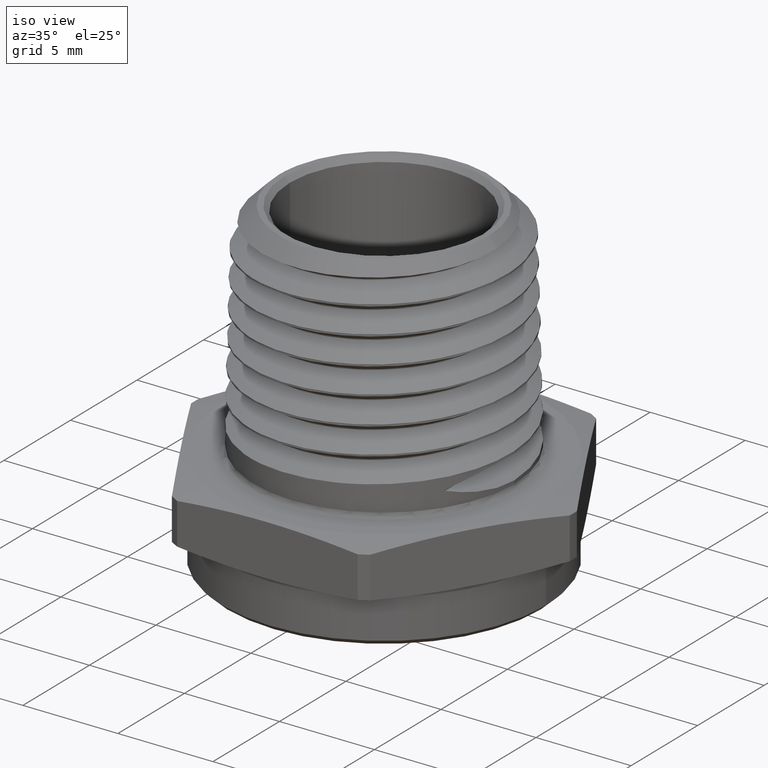
[diagram: clean part render]
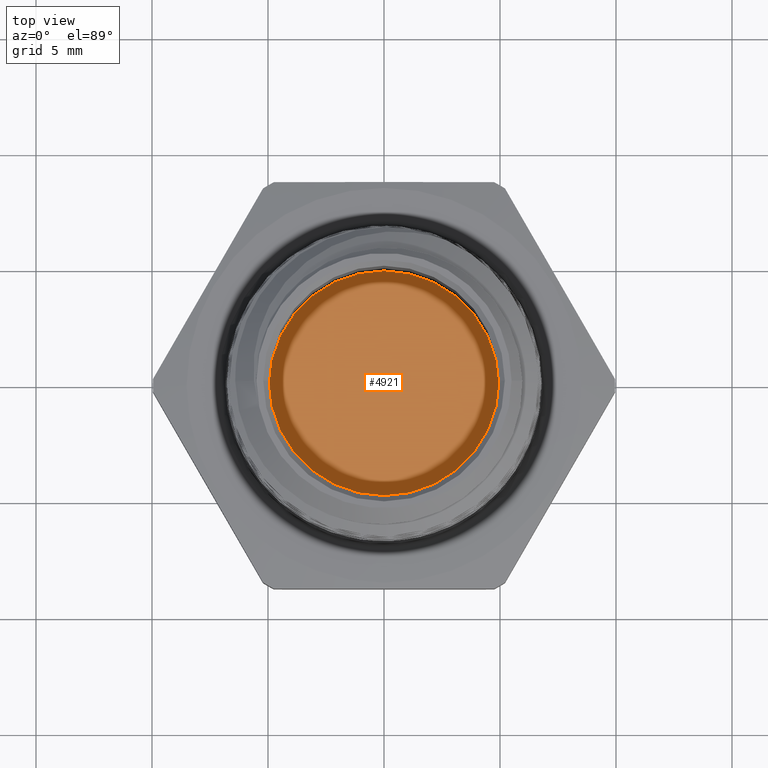
[diagram: tour spotlight — one face highlighted and labeled with its STEP entity id]
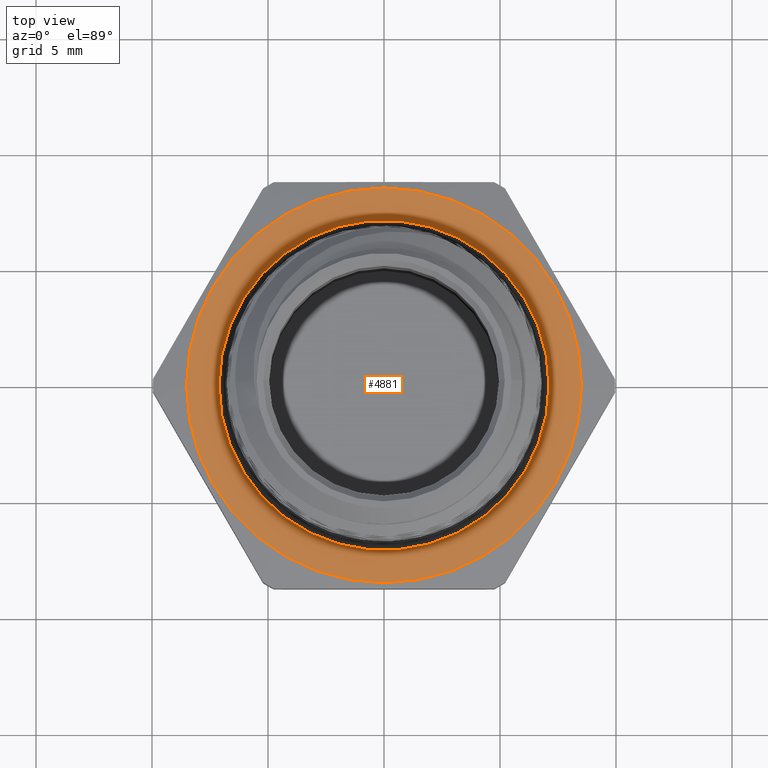
[diagram: tour spotlight — one face highlighted and labeled with its STEP entity id]
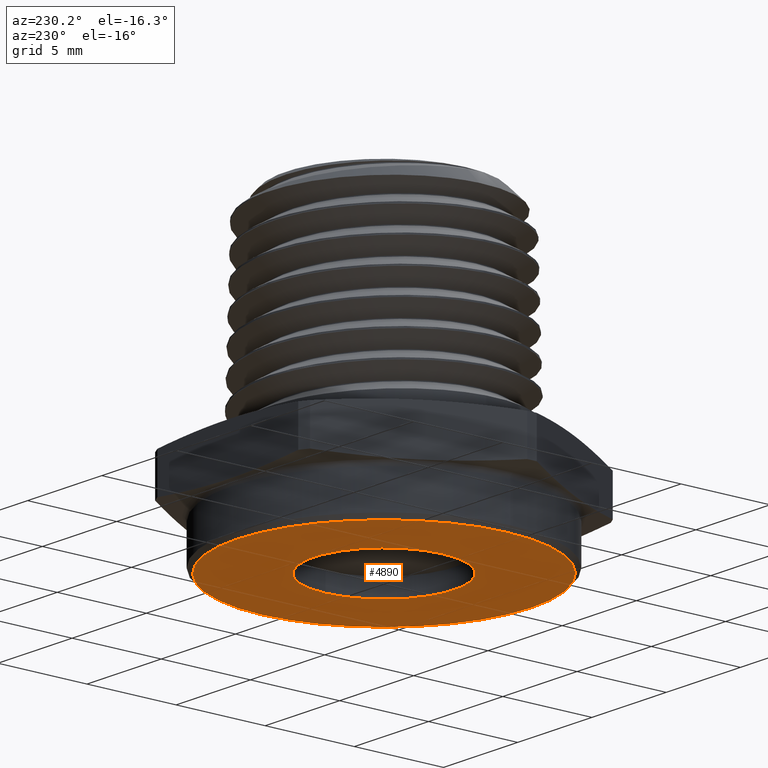
[diagram: tour spotlight — one face highlighted and labeled with its STEP entity id]
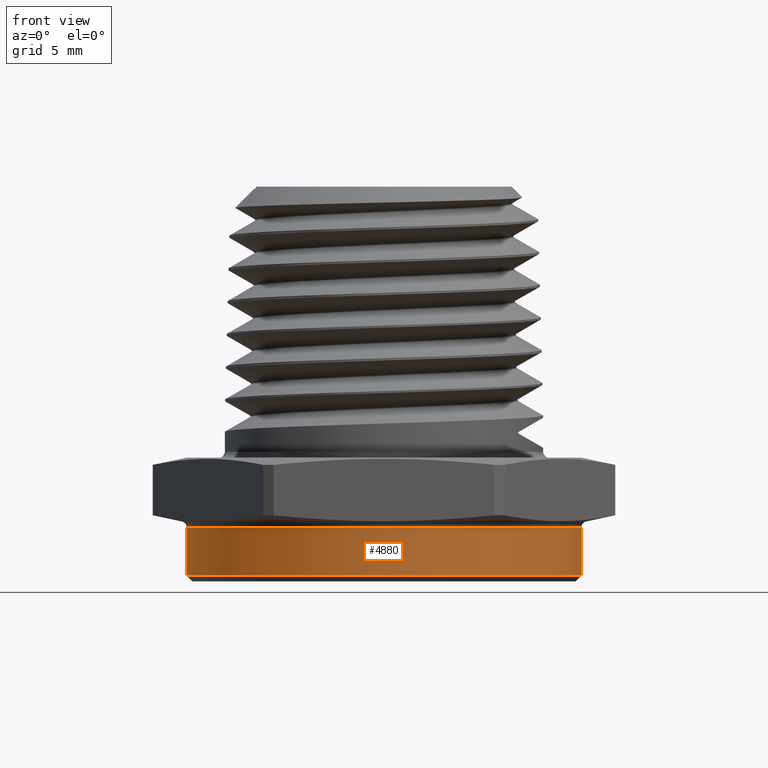
[diagram: tour spotlight — one face highlighted and labeled with its STEP entity id]
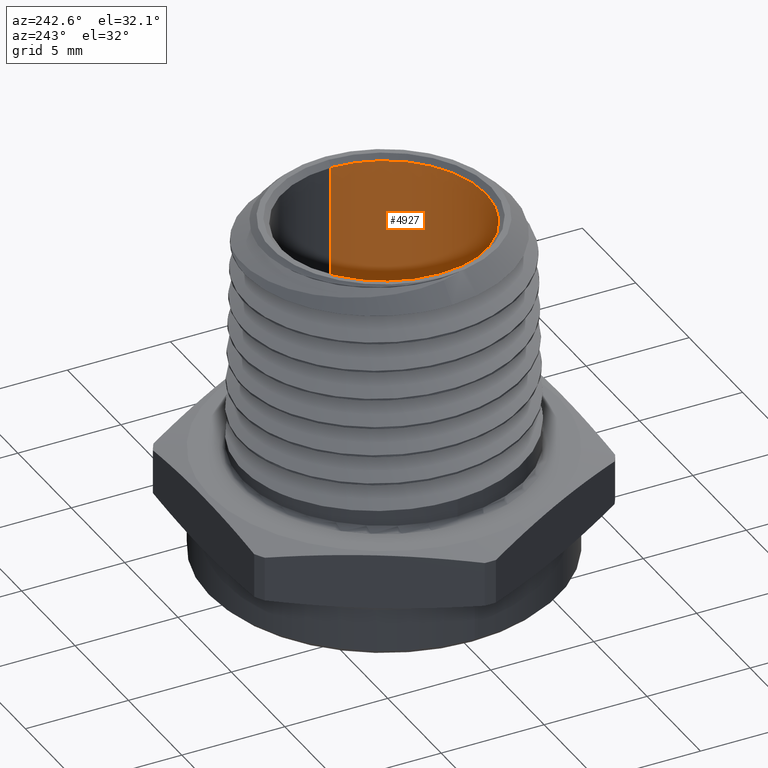
[diagram: tour spotlight — one face highlighted and labeled with its STEP entity id]
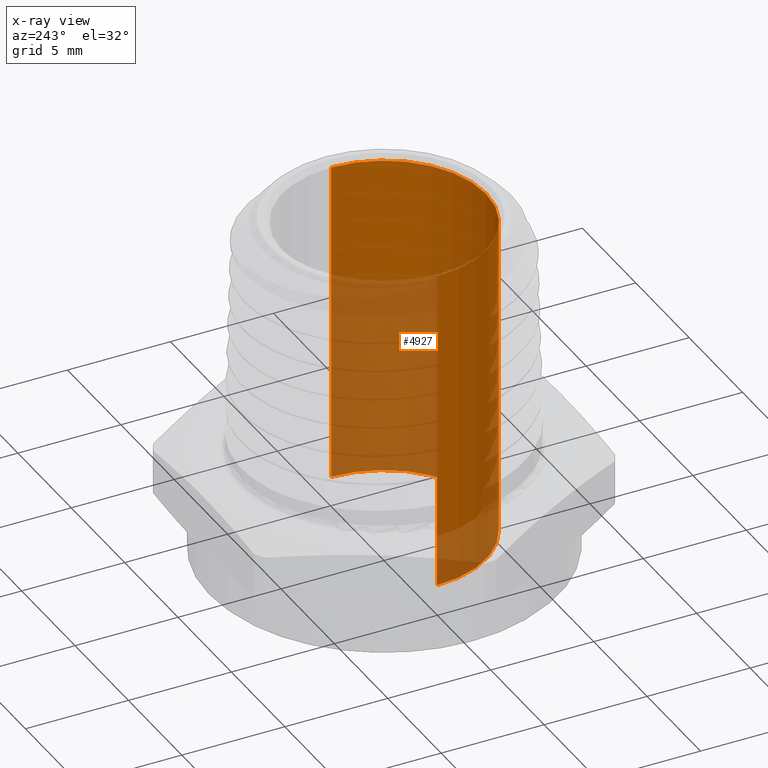
[diagram: x-ray of the same camera — body ghosted, this tour face saturated]
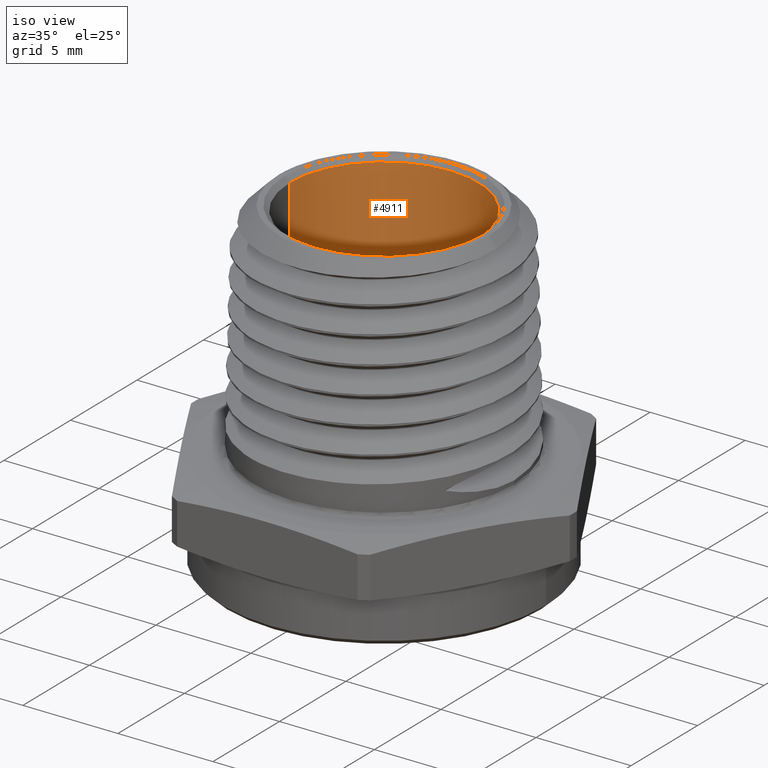
[diagram: tour spotlight — one face highlighted and labeled with its STEP entity id]
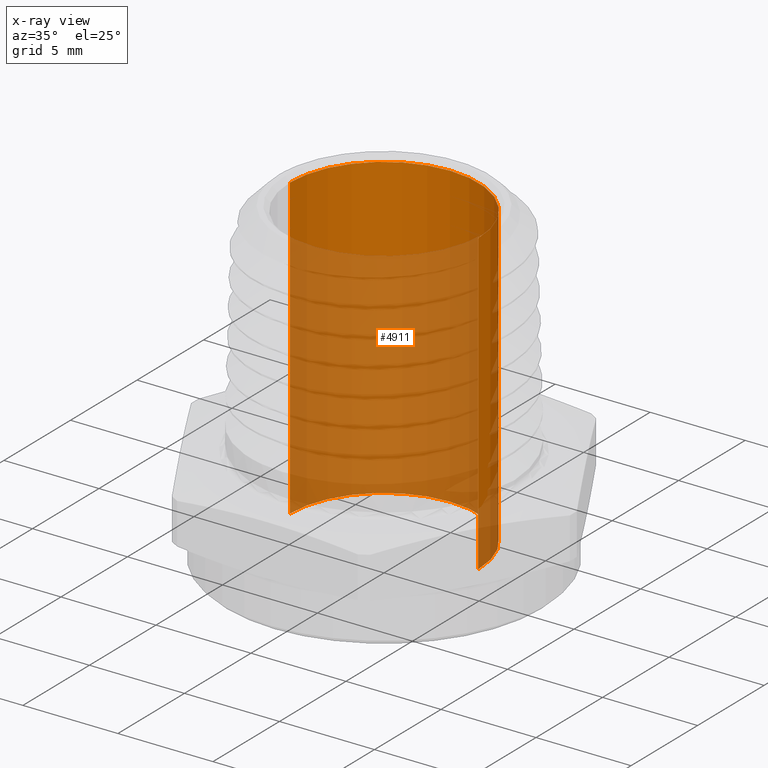
[diagram: x-ray of the same camera — body ghosted, this tour face saturated]
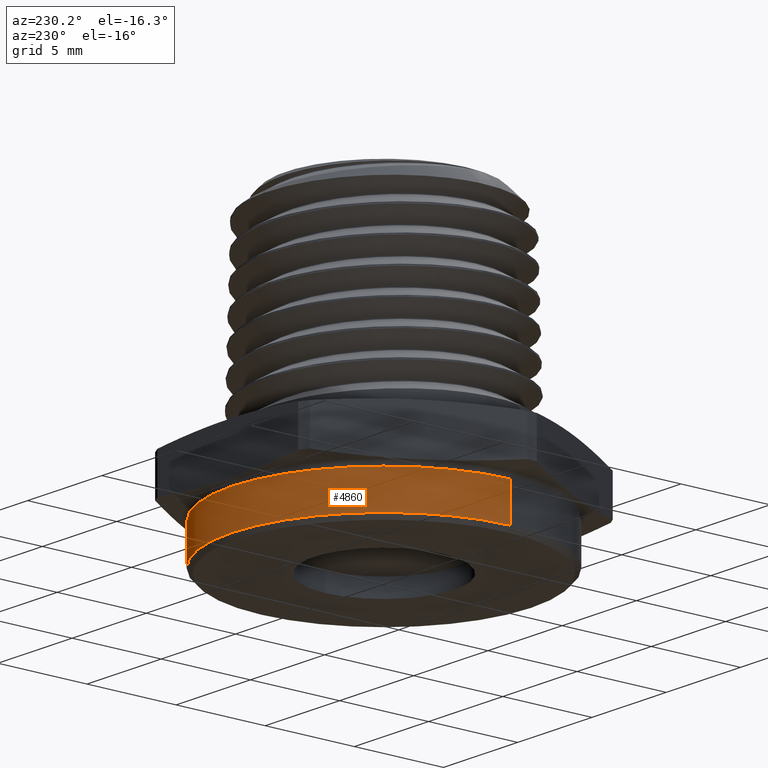
[diagram: tour spotlight — one face highlighted and labeled with its STEP entity id]
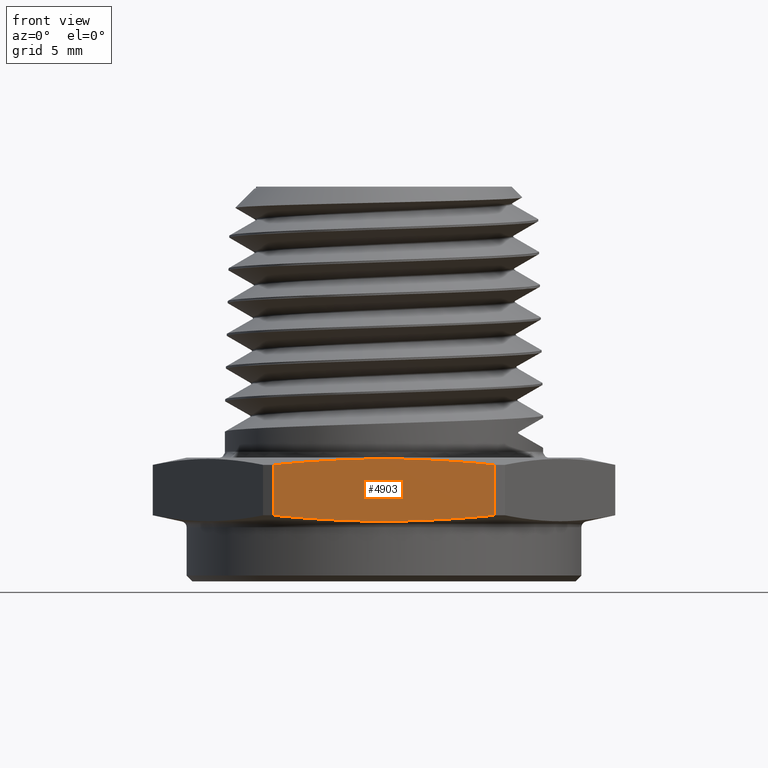
[diagram: tour spotlight — one face highlighted and labeled with its STEP entity id]
A machine part: a face-by-face anatomy tour. The part has 64 B-rep faces; the first image is the clean iso view, then the 8 largest visible faces are spotlighted one at a time (largest first), each with its STEP entity span.

Face 1 — top view, entity #4921. In plain terms, the highlighted planar face has unit normal (0, 0, 1).
Definition (entity closure, byte-faithful):
#700 = AXIS2_PLACEMENT_3D ( 'NONE', #4334, #4335, #4336 ) ;
#702 = AXIS2_PLACEMENT_3D ( 'NONE', #4340, #4341, #4342 ) ;
#796 = AXIS2_PLACEMENT_3D ( 'NONE', #2439, #2440, #2441 ) ;
#1752 = EDGE_CURVE ( 'NONE', #2520, #2514, #2648, .T. ) ;
#1755 = EDGE_CURVE ( 'NONE', #2514, #2520, #2652, .T. ) ;
#1888 = ORIENTED_EDGE ( 'NONE', *, *, #1752, .T. ) ;
#1889 = ORIENTED_EDGE ( 'NONE', *, *, #1755, .T. ) ;
#2025 = EDGE_LOOP ( 'NONE', ( #1889, #1888 ) ) ;
#2430 = PLANE ( 'NONE',  #796 ) ;
#2439 = CARTESIAN_POINT ( 'NONE',  ( -2.924951272421388200E-017, 0.0000000000000000000, 0.05999999999999997700 ) ) ;
#2440 = DIRECTION ( 'NONE',  ( 0.0000000000000000000, 0.0000000000000000000, 1.000000000000000000 ) ) ;
#2441 = DIRECTION ( 'NONE',  ( 1.000000000000000000, 0.0000000000000000000, -0.0000000000000000000 ) ) ;
#2514 = VERTEX_POINT ( 'NONE', #4592 ) ;
#2520 = VERTEX_POINT ( 'NONE', #4581 ) ;
#2648 = CIRCLE ( 'NONE', #700, 0.1949999999999999200 ) ;
#2652 = CIRCLE ( 'NONE', #702, 0.1949999999999999200 ) ;
#4334 = CARTESIAN_POINT ( 'NONE',  ( -2.924951272421388200E-017, 0.0000000000000000000, 0.05999999999999997700 ) ) ;
#4335 = DIRECTION ( 'NONE',  ( 0.0000000000000000000, 0.0000000000000000000, 1.000000000000000000 ) ) ;
#4336 = DIRECTION ( 'NONE',  ( 1.000000000000000000, 0.0000000000000000000, 0.0000000000000000000 ) ) ;
#4340 = CARTESIAN_POINT ( 'NONE',  ( -2.924951272421388200E-017, 0.0000000000000000000, 0.05999999999999997700 ) ) ;
#4341 = DIRECTION ( 'NONE',  ( 0.0000000000000000000, 0.0000000000000000000, 1.000000000000000000 ) ) ;
#4342 = DIRECTION ( 'NONE',  ( 1.000000000000000000, 0.0000000000000000000, 0.0000000000000000000 ) ) ;
#4581 = CARTESIAN_POINT ( 'NONE',  ( 0.1949999999999999000, 2.388061258337337500E-017, 0.05999999999999997700 ) ) ;
#4592 = CARTESIAN_POINT ( 'NONE',  ( -0.1949999999999999800, 0.0000000000000000000, 0.05999999999999997700 ) ) ;
#4921 = ADVANCED_FACE ( 'NONE', ( #5267 ), #2430, .T. ) ;
#5267 = FACE_OUTER_BOUND ( 'NONE', #2025, .T. ) ;

Face 2 — top view, entity #4881. In plain terms, the highlighted planar face has unit normal (-0, 0, 1).
Definition (entity closure, byte-faithful):
#685 = AXIS2_PLACEMENT_3D ( 'NONE', #3100, #3101, #3102 ) ;
#686 = AXIS2_PLACEMENT_3D ( 'NONE', #3103, #3104, #3105 ) ;
#714 = AXIS2_PLACEMENT_3D ( 'NONE', #4432, #4433, #4434 ) ;
#727 = AXIS2_PLACEMENT_3D ( 'NONE', #4508, #4509, #4510 ) ;
#754 = AXIS2_PLACEMENT_3D ( 'NONE', #3465, #3464, #3468 ) ;
#846 = ORIENTED_EDGE ( 'NONE', *, *, #1713, .T. ) ;
#847 = ORIENTED_EDGE ( 'NONE', *, *, #1712, .F. ) ;
#888 = ORIENTED_EDGE ( 'NONE', *, *, #1774, .T. ) ;
#1712 = EDGE_CURVE ( 'NONE', #1868, #1859, #2601, .T. ) ;
#1713 = EDGE_CURVE ( 'NONE', #1833, #1872, #2603, .T. ) ;
#1774 = EDGE_CURVE ( 'NONE', #1872, #1833, #2675, .T. ) ;
#1798 = EDGE_CURVE ( 'NONE', #1859, #1868, #2702, .T. ) ;
#1805 = ORIENTED_EDGE ( 'NONE', *, *, #1798, .F. ) ;
#1833 = VERTEX_POINT ( 'NONE', #4529 ) ;
#1859 = VERTEX_POINT ( 'NONE', #4553 ) ;
#1868 = VERTEX_POINT ( 'NONE', #4562 ) ;
#1872 = VERTEX_POINT ( 'NONE', #4566 ) ;
#2601 = CIRCLE ( 'NONE', #685, 0.3350000000000000200 ) ;
#2603 = CIRCLE ( 'NONE', #686, 0.2800000000000000300 ) ;
#2675 = CIRCLE ( 'NONE', #714, 0.2800000000000000300 ) ;
#2702 = CIRCLE ( 'NONE', #727, 0.3350000000000000200 ) ;
#3100 = CARTESIAN_POINT ( 'NONE',  ( 1.347111479062086200E-017, 0.0000000000000000000, 0.1099999999999999700 ) ) ;
#3101 = DIRECTION ( 'NONE',  ( -1.224646799147351200E-016, -0.0000000000000000000, -1.000000000000000000 ) ) ;
#3102 = DIRECTION ( 'NONE',  ( -1.000000000000000000, 0.0000000000000000000, 1.019346266292635500E-016 ) ) ;
#3103 = CARTESIAN_POINT ( 'NONE',  ( 0.0000000000000000000, 0.0000000000000000000, 0.1100000000000000000 ) ) ;
#3104 = DIRECTION ( 'NONE',  ( 0.0000000000000000000, -0.0000000000000000000, -1.000000000000000000 ) ) ;
#3105 = DIRECTION ( 'NONE',  ( 1.000000000000000000, 0.0000000000000000000, 0.0000000000000000000 ) ) ;
#3464 = DIRECTION ( 'NONE',  ( -0.0000000000000000000, 0.0000000000000000000, 1.000000000000000000 ) ) ;
#3465 = CARTESIAN_POINT ( 'NONE',  ( -0.1991858428704206800, -0.3449999999999998100, 0.1100000000000000000 ) ) ;
#3466 = PLANE ( 'NONE',  #754 ) ;
#3468 = DIRECTION ( 'NONE',  ( 1.000000000000000000, 0.0000000000000000000, 0.0000000000000000000 ) ) ;
#4432 = CARTESIAN_POINT ( 'NONE',  ( 0.0000000000000000000, 0.0000000000000000000, 0.1100000000000000000 ) ) ;
#4433 = DIRECTION ( 'NONE',  ( 0.0000000000000000000, -0.0000000000000000000, -1.000000000000000000 ) ) ;
#4434 = DIRECTION ( 'NONE',  ( 1.000000000000000000, 0.0000000000000000000, 0.0000000000000000000 ) ) ;
#4508 = CARTESIAN_POINT ( 'NONE',  ( 1.347111479062086200E-017, 0.0000000000000000000, 0.1099999999999999700 ) ) ;
#4509 = DIRECTION ( 'NONE',  ( -1.224646799147351200E-016, -0.0000000000000000000, -1.000000000000000000 ) ) ;
#4510 = DIRECTION ( 'NONE',  ( -1.000000000000000000, 0.0000000000000000000, 1.019346266292635500E-016 ) ) ;
#4529 = CARTESIAN_POINT ( 'NONE',  ( -0.2800000000000000300, 3.429011037612588800E-017, 0.1100000000000000300 ) ) ;
#4553 = CARTESIAN_POINT ( 'NONE',  ( -0.3350000000000000200, 0.0000000000000000000, 0.1100000000000000000 ) ) ;
#4562 = CARTESIAN_POINT ( 'NONE',  ( 0.3350000000000000200, 4.102566777143634000E-017, 0.1099999999999999300 ) ) ;
#4566 = CARTESIAN_POINT ( 'NONE',  ( 0.2800000000000000300, 0.0000000000000000000, 0.1100000000000000300 ) ) ;
#4610 = EDGE_LOOP ( 'NONE', ( #1805, #847 ) ) ;
#4881 = ADVANCED_FACE ( 'NONE', ( #5209, #5211 ), #3466, .T. ) ;
#5209 = FACE_OUTER_BOUND ( 'NONE', #4610, .T. ) ;
#5211 = FACE_BOUND ( 'NONE', #5300, .T. ) ;
#5300 = EDGE_LOOP ( 'NONE', ( #888, #846 ) ) ;

Face 3 — auxiliary view, entity #4890. In plain terms, the highlighted planar face has unit normal (0, 0, -1).
Definition (entity closure, byte-faithful):
#688 = AXIS2_PLACEMENT_3D ( 'NONE', #3109, #3110, #3111 ) ;
#689 = AXIS2_PLACEMENT_3D ( 'NONE', #3112, #3113, #3114 ) ;
#718 = AXIS2_PLACEMENT_3D ( 'NONE', #4450, #4451, #4452 ) ;
#719 = AXIS2_PLACEMENT_3D ( 'NONE', #4456, #4457, #4458 ) ;
#756 = AXIS2_PLACEMENT_3D ( 'NONE', #3469, #3467, #3473 ) ;
#866 = ORIENTED_EDGE ( 'NONE', *, *, #1784, .T. ) ;
#867 = ORIENTED_EDGE ( 'NONE', *, *, #1716, .T. ) ;
#890 = ORIENTED_EDGE ( 'NONE', *, *, #1780, .F. ) ;
#893 = ORIENTED_EDGE ( 'NONE', *, *, #1715, .F. ) ;
#1715 = EDGE_CURVE ( 'NONE', #1841, #1838, #2602, .T. ) ;
#1716 = EDGE_CURVE ( 'NONE', #1852, #1851, #2605, .T. ) ;
#1780 = EDGE_CURVE ( 'NONE', #1838, #1841, #2684, .T. ) ;
#1784 = EDGE_CURVE ( 'NONE', #1851, #1852, #2691, .T. ) ;
#1838 = VERTEX_POINT ( 'NONE', #4532 ) ;
#1841 = VERTEX_POINT ( 'NONE', #4535 ) ;
#1851 = VERTEX_POINT ( 'NONE', #4545 ) ;
#1852 = VERTEX_POINT ( 'NONE', #4546 ) ;
#2602 = CIRCLE ( 'NONE', #688, 0.1549999999999999400 ) ;
#2605 = CIRCLE ( 'NONE', #689, 0.3249999999999999600 ) ;
#2684 = CIRCLE ( 'NONE', #718, 0.1549999999999999400 ) ;
#2691 = CIRCLE ( 'NONE', #719, 0.3249999999999999600 ) ;
#2718 = FACE_BOUND ( 'NONE', #4621, .T. ) ;
#3109 = CARTESIAN_POINT ( 'NONE',  ( -3.414809992080329000E-017, 0.0000000000000000000, -0.1000000000000000200 ) ) ;
#3110 = DIRECTION ( 'NONE',  ( -1.224646799147353200E-016, -0.0000000000000000000, -1.000000000000000000 ) ) ;
#3111 = DIRECTION ( 'NONE',  ( -1.000000000000000000, 0.0000000000000000000, 1.101551610348493600E-016 ) ) ;
#3112 = CARTESIAN_POINT ( 'NONE',  ( 0.0000000000000000000, 0.0000000000000000000, -0.1000000000000000100 ) ) ;
#3113 = DIRECTION ( 'NONE',  ( 0.0000000000000000000, 0.0000000000000000000, -1.000000000000000000 ) ) ;
#3114 = DIRECTION ( 'NONE',  ( -1.000000000000000000, 0.0000000000000000000, 0.0000000000000000000 ) ) ;
#3467 = DIRECTION ( 'NONE',  ( 0.0000000000000000000, 0.0000000000000000000, -1.000000000000000000 ) ) ;
#3469 = CARTESIAN_POINT ( 'NONE',  ( 0.0000000000000000000, 0.0000000000000000000, -0.1000000000000000100 ) ) ;
#3471 = PLANE ( 'NONE',  #756 ) ;
#3473 = DIRECTION ( 'NONE',  ( -1.000000000000000000, 0.0000000000000000000, -0.0000000000000000000 ) ) ;
#4450 = CARTESIAN_POINT ( 'NONE',  ( -3.414809992080329000E-017, 0.0000000000000000000, -0.1000000000000000200 ) ) ;
#4451 = DIRECTION ( 'NONE',  ( -1.224646799147353200E-016, -0.0000000000000000000, -1.000000000000000000 ) ) ;
#4452 = DIRECTION ( 'NONE',  ( -1.000000000000000000, 0.0000000000000000000, 1.101551610348493600E-016 ) ) ;
#4456 = CARTESIAN_POINT ( 'NONE',  ( 0.0000000000000000000, 0.0000000000000000000, -0.1000000000000000100 ) ) ;
#4457 = DIRECTION ( 'NONE',  ( 0.0000000000000000000, 0.0000000000000000000, -1.000000000000000000 ) ) ;
#4458 = DIRECTION ( 'NONE',  ( -1.000000000000000000, 0.0000000000000000000, 0.0000000000000000000 ) ) ;
#4532 = CARTESIAN_POINT ( 'NONE',  ( 0.1549999999999999200, 1.898202538678397000E-017, -0.1000000000000000500 ) ) ;
#4535 = CARTESIAN_POINT ( 'NONE',  ( -0.1550000000000000000, 0.0000000000000000000, -0.1000000000000000100 ) ) ;
#4545 = CARTESIAN_POINT ( 'NONE',  ( -0.3249999999999999600, 4.041334437186264600E-017, -0.1000000000000000100 ) ) ;
#4546 = CARTESIAN_POINT ( 'NONE',  ( 0.3249999999999999600, 0.0000000000000000000, -0.1000000000000000100 ) ) ;
#4621 = EDGE_LOOP ( 'NONE', ( #893, #890 ) ) ;
#4890 = ADVANCED_FACE ( 'NONE', ( #2718, #5213 ), #3471, .T. ) ;
#5213 = FACE_OUTER_BOUND ( 'NONE', #5298, .T. ) ;
#5298 = EDGE_LOOP ( 'NONE', ( #867, #866 ) ) ;

Face 4 — front view, entity #4880. In plain terms, the highlighted cylindrical surface (partial cylindrical patch) has radius 8.509 mm, axis along (-0, -0, 1).
Definition (entity closure, byte-faithful):
#687 = AXIS2_PLACEMENT_3D ( 'NONE', #3106, #3107, #3108 ) ;
#712 = AXIS2_PLACEMENT_3D ( 'NONE', #4425, #4426, #4427 ) ;
#753 = AXIS2_PLACEMENT_3D ( 'NONE', #3462, #3463, #3461 ) ;
#827 = ORIENTED_EDGE ( 'NONE', *, *, #1759, .F. ) ;
#876 = ORIENTED_EDGE ( 'NONE', *, *, #1772, .T. ) ;
#899 = ORIENTED_EDGE ( 'NONE', *, *, #1764, .T. ) ;
#902 = ORIENTED_EDGE ( 'NONE', *, *, #1714, .T. ) ;
#1714 = EDGE_CURVE ( 'NONE', #1834, #1831, #2604, .T. ) ;
#1759 = EDGE_CURVE ( 'NONE', #1834, #1837, #2657, .T. ) ;
#1764 = EDGE_CURVE ( 'NONE', #1831, #1828, #2666, .T. ) ;
#1772 = EDGE_CURVE ( 'NONE', #1828, #1837, #2673, .T. ) ;
#1828 = VERTEX_POINT ( 'NONE', #4525 ) ;
#1831 = VERTEX_POINT ( 'NONE', #4520 ) ;
#1834 = VERTEX_POINT ( 'NONE', #4521 ) ;
#1837 = VERTEX_POINT ( 'NONE', #4519 ) ;
#2604 = CIRCLE ( 'NONE', #687, 0.3350000000000000200 ) ;
#2657 = LINE ( 'NONE', #4388, #2661 ) ;
#2661 = VECTOR ( 'NONE', #4389, 39.37007874015748100 ) ;
#2666 = LINE ( 'NONE', #4395, #2668 ) ;
#2668 = VECTOR ( 'NONE', #4396, 39.37007874015748100 ) ;
#2673 = CIRCLE ( 'NONE', #712, 0.3350000000000000200 ) ;
#3106 = CARTESIAN_POINT ( 'NONE',  ( 0.0000000000000000000, 0.0000000000000000000, -0.08999999999999970500 ) ) ;
#3107 = DIRECTION ( 'NONE',  ( 0.0000000000000000000, 0.0000000000000000000, 1.000000000000000000 ) ) ;
#3108 = DIRECTION ( 'NONE',  ( -1.000000000000000000, 0.0000000000000000000, 0.0000000000000000000 ) ) ;
#3461 = DIRECTION ( 'NONE',  ( 1.000000000000000000, 0.0000000000000000000, 0.0000000000000000000 ) ) ;
#3462 = CARTESIAN_POINT ( 'NONE',  ( 0.0000000000000000000, 0.0000000000000000000, -0.1000000000000000100 ) ) ;
#3463 = DIRECTION ( 'NONE',  ( -0.0000000000000000000, -0.0000000000000000000, 1.000000000000000000 ) ) ;
#4388 = CARTESIAN_POINT ( 'NONE',  ( -0.3350000000000000200, 4.102566777143633400E-017, -0.1000000000000000100 ) ) ;
#4389 = DIRECTION ( 'NONE',  ( -0.0000000000000000000, -0.0000000000000000000, 1.000000000000000000 ) ) ;
#4395 = CARTESIAN_POINT ( 'NONE',  ( 0.3350000000000000200, 0.0000000000000000000, -0.1000000000000000100 ) ) ;
#4396 = DIRECTION ( 'NONE',  ( -0.0000000000000000000, -0.0000000000000000000, 1.000000000000000000 ) ) ;
#4425 = CARTESIAN_POINT ( 'NONE',  ( 0.0000000000000000000, 0.0000000000000000000, -0.008097840331950198500 ) ) ;
#4426 = DIRECTION ( 'NONE',  ( -6.123233995736756200E-017, -0.0000000000000000000, -1.000000000000000000 ) ) ;
#4427 = DIRECTION ( 'NONE',  ( -1.000000000000000000, 0.0000000000000000000, 6.052368456112523200E-017 ) ) ;
#4519 = CARTESIAN_POINT ( 'NONE',  ( -0.3350000000000000200, 4.102566777143633400E-017, -0.008097840331950177700 ) ) ;
#4520 = CARTESIAN_POINT ( 'NONE',  ( 0.3350000000000000200, 0.0000000000000000000, -0.08999999999999970500 ) ) ;
#4521 = CARTESIAN_POINT ( 'NONE',  ( -0.3350000000000000200, 4.102566777143633400E-017, -0.08999999999999970500 ) ) ;
#4525 = CARTESIAN_POINT ( 'NONE',  ( 0.3350000000000000200, 0.0000000000000000000, -0.008097840331950219300 ) ) ;
#4880 = ADVANCED_FACE ( 'NONE', ( #5199 ), #5201, .T. ) ;
#5199 = FACE_OUTER_BOUND ( 'NONE', #5297, .T. ) ;
#5201 = CYLINDRICAL_SURFACE ( 'NONE', #753, 0.3350000000000000200 ) ;
#5297 = EDGE_LOOP ( 'NONE', ( #827, #902, #899, #876 ) ) ;

Face 5 — auxiliary view, entity #4927. An x-ray twin of the same camera follows (body ghosted, this face saturated) — the face is partly hidden behind the body. In plain terms, the highlighted cylindrical surface (partial cylindrical patch) has radius 4.953 mm, axis along (-0, -0, -1).
Definition (entity closure, byte-faithful):
#664 = EDGE_CURVE ( 'NONE', #1863, #1869, #2547, .T. ) ;
#668 = EDGE_CURVE ( 'NONE', #1863, #1880, #2551, .T. ) ;
#672 = AXIS2_PLACEMENT_3D ( 'NONE', #5176, #5175, #5173 ) ;
#721 = AXIS2_PLACEMENT_3D ( 'NONE', #4465, #4466, #4467 ) ;
#806 = AXIS2_PLACEMENT_3D ( 'NONE', #2465, #2466, #2464 ) ;
#1782 = EDGE_CURVE ( 'NONE', #1880, #1876, #2686, .T. ) ;
#1786 = EDGE_CURVE ( 'NONE', #1869, #1876, #2694, .T. ) ;
#1863 = VERTEX_POINT ( 'NONE', #4557 ) ;
#1869 = VERTEX_POINT ( 'NONE', #4563 ) ;
#1876 = VERTEX_POINT ( 'NONE', #4570 ) ;
#1880 = VERTEX_POINT ( 'NONE', #4574 ) ;
#2008 = EDGE_LOOP ( 'NONE', ( #4945, #4988, #4974, #4966 ) ) ;
#2464 = DIRECTION ( 'NONE',  ( -1.000000000000000000, 0.0000000000000000000, 8.755923056616229400E-017 ) ) ;
#2465 = CARTESIAN_POINT ( 'NONE',  ( -3.414809992080329000E-017, 0.0000000000000000000, -0.1000000000000000100 ) ) ;
#2466 = DIRECTION ( 'NONE',  ( -1.224646799147353200E-016, -0.0000000000000000000, -1.000000000000000000 ) ) ;
#2547 = LINE ( 'NONE', #5170, #2548 ) ;
#2548 = VECTOR ( 'NONE', #5197, 39.37007874015748100 ) ;
#2551 = CIRCLE ( 'NONE', #672, 0.1949999999999999800 ) ;
#2686 = LINE ( 'NONE', #4448, #2690 ) ;
#2690 = VECTOR ( 'NONE', #4453, 39.37007874015748100 ) ;
#2694 = CIRCLE ( 'NONE', #721, 0.1949999999999999200 ) ;
#4448 = CARTESIAN_POINT ( 'NONE',  ( -0.1950000000000000100, 0.0000000000000000000, -0.09999999999999999200 ) ) ;
#4453 = DIRECTION ( 'NONE',  ( -1.224646799147353200E-016, -0.0000000000000000000, -1.000000000000000000 ) ) ;
#4465 = CARTESIAN_POINT ( 'NONE',  ( -2.924951272421388200E-017, 0.0000000000000000000, -0.06000000000000003200 ) ) ;
#4466 = DIRECTION ( 'NONE',  ( -1.224646799147353200E-016, -0.0000000000000000000, -1.000000000000000000 ) ) ;
#4467 = DIRECTION ( 'NONE',  ( -1.000000000000000000, 0.0000000000000000000, 1.313388458492434700E-016 ) ) ;
#4557 = CARTESIAN_POINT ( 'NONE',  ( 0.1950000000000000100, 2.388061258337338700E-017, 0.5599999999999999400 ) ) ;
#4563 = CARTESIAN_POINT ( 'NONE',  ( 0.1949999999999999000, 2.388061258337338400E-017, -0.06000000000000006000 ) ) ;
#4570 = CARTESIAN_POINT ( 'NONE',  ( -0.1949999999999999800, 0.0000000000000000000, -0.06000000000000001200 ) ) ;
#4574 = CARTESIAN_POINT ( 'NONE',  ( -0.1949999999999999200, 0.0000000000000000000, 0.5599999999999999400 ) ) ;
#4927 = ADVANCED_FACE ( 'NONE', ( #5283 ), #5286, .F. ) ;
#4945 = ORIENTED_EDGE ( 'NONE', *, *, #668, .F. ) ;
#4966 = ORIENTED_EDGE ( 'NONE', *, *, #1782, .F. ) ;
#4974 = ORIENTED_EDGE ( 'NONE', *, *, #1786, .T. ) ;
#4988 = ORIENTED_EDGE ( 'NONE', *, *, #664, .T. ) ;
#5170 = CARTESIAN_POINT ( 'NONE',  ( 0.1949999999999999200, 2.388061258337338400E-017, -0.1000000000000000200 ) ) ;
#5173 = DIRECTION ( 'NONE',  ( -1.000000000000000000, 0.0000000000000000000, 0.0000000000000000000 ) ) ;
#5175 = DIRECTION ( 'NONE',  ( -1.224646799147353200E-016, -0.0000000000000000000, -1.000000000000000000 ) ) ;
#5176 = CARTESIAN_POINT ( 'NONE',  ( 4.667858882292200900E-017, 0.0000000000000000000, 0.5599999999999999400 ) ) ;
#5197 = DIRECTION ( 'NONE',  ( -1.224646799147353200E-016, -0.0000000000000000000, -1.000000000000000000 ) ) ;
#5283 = FACE_OUTER_BOUND ( 'NONE', #2008, .T. ) ;
#5286 = CYLINDRICAL_SURFACE ( 'NONE', #806, 0.1949999999999999800 ) ;

Face 6 — iso view, entity #4911. An x-ray twin of the same camera follows (body ghosted, this face saturated) — the face is partly hidden behind the body. In plain terms, the highlighted cylindrical surface (partial cylindrical patch) has radius 4.953 mm, axis along (-0, -0, -1).
Definition (entity closure, byte-faithful):
#664 = EDGE_CURVE ( 'NONE', #1863, #1869, #2547, .T. ) ;
#698 = AXIS2_PLACEMENT_3D ( 'NONE', #3198, #3199, #3200 ) ;
#699 = AXIS2_PLACEMENT_3D ( 'NONE', #3203, #3204, #3205 ) ;
#777 = AXIS2_PLACEMENT_3D ( 'NONE', #3542, #3538, #3540 ) ;
#1742 = EDGE_CURVE ( 'NONE', #1876, #1869, #2637, .T. ) ;
#1743 = EDGE_CURVE ( 'NONE', #1880, #1863, #2624, .T. ) ;
#1782 = EDGE_CURVE ( 'NONE', #1880, #1876, #2686, .T. ) ;
#1863 = VERTEX_POINT ( 'NONE', #4557 ) ;
#1869 = VERTEX_POINT ( 'NONE', #4563 ) ;
#1876 = VERTEX_POINT ( 'NONE', #4570 ) ;
#1880 = VERTEX_POINT ( 'NONE', #4574 ) ;
#2547 = LINE ( 'NONE', #5170, #2548 ) ;
#2548 = VECTOR ( 'NONE', #5197, 39.37007874015748100 ) ;
#2624 = CIRCLE ( 'NONE', #699, 0.1949999999999999800 ) ;
#2637 = CIRCLE ( 'NONE', #698, 0.1949999999999999200 ) ;
#2686 = LINE ( 'NONE', #4448, #2690 ) ;
#2690 = VECTOR ( 'NONE', #4453, 39.37007874015748100 ) ;
#3198 = CARTESIAN_POINT ( 'NONE',  ( -2.924951272421388200E-017, 0.0000000000000000000, -0.06000000000000003200 ) ) ;
#3199 = DIRECTION ( 'NONE',  ( -1.224646799147353200E-016, -0.0000000000000000000, -1.000000000000000000 ) ) ;
#3200 = DIRECTION ( 'NONE',  ( -1.000000000000000000, 0.0000000000000000000, 1.313388458492434700E-016 ) ) ;
#3203 = CARTESIAN_POINT ( 'NONE',  ( 4.667858882292200900E-017, 0.0000000000000000000, 0.5599999999999999400 ) ) ;
#3204 = DIRECTION ( 'NONE',  ( -1.224646799147353200E-016, -0.0000000000000000000, -1.000000000000000000 ) ) ;
#3205 = DIRECTION ( 'NONE',  ( -1.000000000000000000, 0.0000000000000000000, 0.0000000000000000000 ) ) ;
#3538 = DIRECTION ( 'NONE',  ( -1.224646799147353200E-016, -0.0000000000000000000, -1.000000000000000000 ) ) ;
#3540 = DIRECTION ( 'NONE',  ( -1.000000000000000000, 0.0000000000000000000, 8.755923056616229400E-017 ) ) ;
#3542 = CARTESIAN_POINT ( 'NONE',  ( -3.414809992080329000E-017, 0.0000000000000000000, -0.1000000000000000100 ) ) ;
#4448 = CARTESIAN_POINT ( 'NONE',  ( -0.1950000000000000100, 0.0000000000000000000, -0.09999999999999999200 ) ) ;
#4453 = DIRECTION ( 'NONE',  ( -1.224646799147353200E-016, -0.0000000000000000000, -1.000000000000000000 ) ) ;
#4557 = CARTESIAN_POINT ( 'NONE',  ( 0.1950000000000000100, 2.388061258337338700E-017, 0.5599999999999999400 ) ) ;
#4563 = CARTESIAN_POINT ( 'NONE',  ( 0.1949999999999999000, 2.388061258337338400E-017, -0.06000000000000006000 ) ) ;
#4570 = CARTESIAN_POINT ( 'NONE',  ( -0.1949999999999999800, 0.0000000000000000000, -0.06000000000000001200 ) ) ;
#4574 = CARTESIAN_POINT ( 'NONE',  ( -0.1949999999999999200, 0.0000000000000000000, 0.5599999999999999400 ) ) ;
#4608 = EDGE_LOOP ( 'NONE', ( #5041, #5016, #5023, #5001 ) ) ;
#4911 = ADVANCED_FACE ( 'NONE', ( #5241 ), #5250, .F. ) ;
#5001 = ORIENTED_EDGE ( 'NONE', *, *, #1742, .T. ) ;
#5016 = ORIENTED_EDGE ( 'NONE', *, *, #1743, .F. ) ;
#5023 = ORIENTED_EDGE ( 'NONE', *, *, #1782, .T. ) ;
#5041 = ORIENTED_EDGE ( 'NONE', *, *, #664, .F. ) ;
#5170 = CARTESIAN_POINT ( 'NONE',  ( 0.1949999999999999200, 2.388061258337338400E-017, -0.1000000000000000200 ) ) ;
#5197 = DIRECTION ( 'NONE',  ( -1.224646799147353200E-016, -0.0000000000000000000, -1.000000000000000000 ) ) ;
#5241 = FACE_OUTER_BOUND ( 'NONE', #4608, .T. ) ;
#5250 = CYLINDRICAL_SURFACE ( 'NONE', #777, 0.1949999999999999800 ) ;

Face 7 — auxiliary view, entity #4860. In plain terms, the highlighted cylindrical surface (partial cylindrical patch) has radius 8.509 mm, axis along (-0, -0, 1).
Definition (entity closure, byte-faithful):
#704 = AXIS2_PLACEMENT_3D ( 'NONE', #4392, #4393, #4394 ) ;
#717 = AXIS2_PLACEMENT_3D ( 'NONE', #4445, #4446, #4447 ) ;
#735 = AXIS2_PLACEMENT_3D ( 'NONE', #3402, #3403, #3401 ) ;
#1759 = EDGE_CURVE ( 'NONE', #1834, #1837, #2657, .T. ) ;
#1760 = EDGE_CURVE ( 'NONE', #1837, #1828, #2654, .T. ) ;
#1764 = EDGE_CURVE ( 'NONE', #1831, #1828, #2666, .T. ) ;
#1778 = EDGE_CURVE ( 'NONE', #1831, #1834, #2679, .T. ) ;
#1810 = ORIENTED_EDGE ( 'NONE', *, *, #1759, .T. ) ;
#1811 = ORIENTED_EDGE ( 'NONE', *, *, #1778, .T. ) ;
#1828 = VERTEX_POINT ( 'NONE', #4525 ) ;
#1831 = VERTEX_POINT ( 'NONE', #4520 ) ;
#1834 = VERTEX_POINT ( 'NONE', #4521 ) ;
#1837 = VERTEX_POINT ( 'NONE', #4519 ) ;
#1980 = ORIENTED_EDGE ( 'NONE', *, *, #1764, .F. ) ;
#2654 = CIRCLE ( 'NONE', #704, 0.3350000000000000200 ) ;
#2657 = LINE ( 'NONE', #4388, #2661 ) ;
#2661 = VECTOR ( 'NONE', #4389, 39.37007874015748100 ) ;
#2666 = LINE ( 'NONE', #4395, #2668 ) ;
#2668 = VECTOR ( 'NONE', #4396, 39.37007874015748100 ) ;
#2679 = CIRCLE ( 'NONE', #717, 0.3350000000000000200 ) ;
#2719 = FACE_OUTER_BOUND ( 'NONE', #4596, .T. ) ;
#2722 = CYLINDRICAL_SURFACE ( 'NONE', #735, 0.3350000000000000200 ) ;
#3401 = DIRECTION ( 'NONE',  ( 1.000000000000000000, 0.0000000000000000000, 0.0000000000000000000 ) ) ;
#3402 = CARTESIAN_POINT ( 'NONE',  ( 0.0000000000000000000, 0.0000000000000000000, -0.1000000000000000100 ) ) ;
#3403 = DIRECTION ( 'NONE',  ( -0.0000000000000000000, -0.0000000000000000000, 1.000000000000000000 ) ) ;
#4388 = CARTESIAN_POINT ( 'NONE',  ( -0.3350000000000000200, 4.102566777143633400E-017, -0.1000000000000000100 ) ) ;
#4389 = DIRECTION ( 'NONE',  ( -0.0000000000000000000, -0.0000000000000000000, 1.000000000000000000 ) ) ;
#4392 = CARTESIAN_POINT ( 'NONE',  ( 0.0000000000000000000, 0.0000000000000000000, -0.008097840331950198500 ) ) ;
#4393 = DIRECTION ( 'NONE',  ( -6.123233995736756200E-017, -0.0000000000000000000, -1.000000000000000000 ) ) ;
#4394 = DIRECTION ( 'NONE',  ( -1.000000000000000000, 0.0000000000000000000, 6.052368456112523200E-017 ) ) ;
#4395 = CARTESIAN_POINT ( 'NONE',  ( 0.3350000000000000200, 0.0000000000000000000, -0.1000000000000000100 ) ) ;
#4396 = DIRECTION ( 'NONE',  ( -0.0000000000000000000, -0.0000000000000000000, 1.000000000000000000 ) ) ;
#4445 = CARTESIAN_POINT ( 'NONE',  ( 0.0000000000000000000, 0.0000000000000000000, -0.08999999999999970500 ) ) ;
#4446 = DIRECTION ( 'NONE',  ( 0.0000000000000000000, 0.0000000000000000000, 1.000000000000000000 ) ) ;
#4447 = DIRECTION ( 'NONE',  ( -1.000000000000000000, 0.0000000000000000000, 0.0000000000000000000 ) ) ;
#4519 = CARTESIAN_POINT ( 'NONE',  ( -0.3350000000000000200, 4.102566777143633400E-017, -0.008097840331950177700 ) ) ;
#4520 = CARTESIAN_POINT ( 'NONE',  ( 0.3350000000000000200, 0.0000000000000000000, -0.08999999999999970500 ) ) ;
#4521 = CARTESIAN_POINT ( 'NONE',  ( -0.3350000000000000200, 4.102566777143633400E-017, -0.08999999999999970500 ) ) ;
#4525 = CARTESIAN_POINT ( 'NONE',  ( 0.3350000000000000200, 0.0000000000000000000, -0.008097840331950219300 ) ) ;
#4596 = EDGE_LOOP ( 'NONE', ( #1811, #1810, #4957, #1980 ) ) ;
#4860 = ADVANCED_FACE ( 'NONE', ( #2719 ), #2722, .T. ) ;
#4957 = ORIENTED_EDGE ( 'NONE', *, *, #1760, .T. ) ;

Face 8 — front view, entity #4903. In plain terms, the highlighted planar face has unit normal (0, 1, 0).
Definition (entity closure, byte-faithful):
#768 = AXIS2_PLACEMENT_3D ( 'NONE', #3511, #3516, #3517 ) ;
#1638 = B_SPLINE_CURVE_WITH_KNOTS ( 'NONE', 3,
 ( #3162, #3156, #3158, #3164, #3165, #3166, #3167, #3168 ),
 .UNSPECIFIED., .F., .F.,
 ( 4, 2, 2, 4 ),
 ( 0.01944090170886726400, 0.02420207298205594200, 0.02658265861865027900, 0.02896324425524461600 ),
 .UNSPECIFIED. ) ;
#1641 = B_SPLINE_CURVE_WITH_KNOTS ( 'NONE', 3,
 ( #3180, #3174, #3176, #3182, #3183, #3184, #3185, #3186 ),
 .UNSPECIFIED., .F., .F.,
 ( 4, 2, 2, 4 ),
 ( 0.008707379266003482600, 0.01109029592398133200, 0.01347321258195918400, 0.01823904589791488400 ),
 .UNSPECIFIED. ) ;
#1718 = EDGE_CURVE ( 'NONE', #2527, #2507, #2607, .T. ) ;
#1725 = EDGE_CURVE ( 'NONE', #2510, #2521, #2617, .T. ) ;
#1735 = EDGE_CURVE ( 'NONE', #2521, #2527, #1638, .T. ) ;
#1738 = EDGE_CURVE ( 'NONE', #2507, #2510, #1641, .T. ) ;
#2507 = VERTEX_POINT ( 'NONE', #4585 ) ;
#2510 = VERTEX_POINT ( 'NONE', #4588 ) ;
#2521 = VERTEX_POINT ( 'NONE', #3367 ) ;
#2527 = VERTEX_POINT ( 'NONE', #3373 ) ;
#2607 = LINE ( 'NONE', #3115, #2610 ) ;
#2610 = VECTOR ( 'NONE', #3099, 39.37007874015748100 ) ;
#2617 = LINE ( 'NONE', #3132, #2621 ) ;
#2621 = VECTOR ( 'NONE', #3131, 39.37007874015748100 ) ;
#3099 = DIRECTION ( 'NONE',  ( -1.224646799147351200E-016, -0.0000000000000000000, -1.000000000000000000 ) ) ;
#3115 = CARTESIAN_POINT ( 'NONE',  ( -0.1868971368724250700, -0.3449999999999998100, 2.288829804406197600E-017 ) ) ;
#3131 = DIRECTION ( 'NONE',  ( 1.224646799147351200E-016, 0.0000000000000000000, 1.000000000000000000 ) ) ;
#3132 = CARTESIAN_POINT ( 'NONE',  ( 0.1868971368724250700, -0.3449999999999998100, -2.288829804406197600E-017 ) ) ;
#3156 = CARTESIAN_POINT ( 'NONE',  ( 0.1247306861591275200, -0.3449999999999998600, 0.1040993998344882400 ) ) ;
#3158 = CARTESIAN_POINT ( 'NONE',  ( 0.06250744931464363700, -0.3449999999999997500, 0.1078667552873613700 ) ) ;
#3162 = CARTESIAN_POINT ( 'NONE',  ( 0.1868971368724250700, -0.3449999999999998100, 0.09780527174171399500 ) ) ;
#3164 = CARTESIAN_POINT ( 'NONE',  ( -0.03095414757252233600, -0.3449999999999998600, 0.1078782555001667500 ) ) ;
#3165 = CARTESIAN_POINT ( 'NONE',  ( -0.06212850595196955900, -0.3449999999999998100, 0.1069702373673606700 ) ) ;
#3166 = CARTESIAN_POINT ( 'NONE',  ( -0.1245142246070181000, -0.3449999999999998600, 0.1035077536880368700 ) ) ;
#3167 = CARTESIAN_POINT ( 'NONE',  ( -0.1557582215120212600, -0.3449999999999998100, 0.1009579741993840700 ) ) ;
#3168 = CARTESIAN_POINT ( 'NONE',  ( -0.1868971368724250700, -0.3449999999999998100, 0.09780527174171402300 ) ) ;
#3174 = CARTESIAN_POINT ( 'NONE',  ( -0.1557582215120213700, -0.3449999999999998100, 0.009042025800615860500 ) ) ;
#3176 = CARTESIAN_POINT ( 'NONE',  ( -0.1245142246070182200, -0.3449999999999998600, 0.006492246311963062300 ) ) ;
#3180 = CARTESIAN_POINT ( 'NONE',  ( -0.1868971368724250700, -0.3449999999999998100, 0.01219472825828593400 ) ) ;
#3182 = CARTESIAN_POINT ( 'NONE',  ( -0.06212850595196967700, -0.3449999999999998100, 0.003029762632639263100 ) ) ;
#3183 = CARTESIAN_POINT ( 'NONE',  ( -0.03095414757252229500, -0.3449999999999998100, 0.002121744499833164100 ) ) ;
#3184 = CARTESIAN_POINT ( 'NONE',  ( 0.06250744931464369300, -0.3449999999999998600, 0.002133244712638485800 ) ) ;
#3185 = CARTESIAN_POINT ( 'NONE',  ( 0.1247306861591275900, -0.3449999999999998100, 0.005900600165511630200 ) ) ;
#3186 = CARTESIAN_POINT ( 'NONE',  ( 0.1868971368724250700, -0.3449999999999998100, 0.01219472825828586200 ) ) ;
#3367 = CARTESIAN_POINT ( 'NONE',  ( 0.1868971368724250700, -0.3449999999999998100, 0.09780527174171399500 ) ) ;
#3373 = CARTESIAN_POINT ( 'NONE',  ( -0.1868971368724250700, -0.3449999999999998100, 0.09780527174171402300 ) ) ;
#3510 = PLANE ( 'NONE',  #768 ) ;
#3511 = CARTESIAN_POINT ( 'NONE',  ( -0.1991858428704207900, -0.3449999999999998100, 0.1100000000000000000 ) ) ;
#3516 = DIRECTION ( 'NONE',  ( 0.0000000000000000000, 1.000000000000000000, 0.0000000000000000000 ) ) ;
#3517 = DIRECTION ( 'NONE',  ( 0.0000000000000000000, -0.0000000000000000000, 1.000000000000000000 ) ) ;
#4585 = CARTESIAN_POINT ( 'NONE',  ( -0.1868971368724250700, -0.3449999999999998100, 0.01219472825828593400 ) ) ;
#4588 = CARTESIAN_POINT ( 'NONE',  ( 0.1868971368724250700, -0.3449999999999998100, 0.01219472825828586200 ) ) ;
#4600 = EDGE_LOOP ( 'NONE', ( #4967, #5030, #4943, #4998 ) ) ;
#4903 = ADVANCED_FACE ( 'NONE', ( #5233 ), #3510, .F. ) ;
#4943 = ORIENTED_EDGE ( 'NONE', *, *, #1735, .T. ) ;
#4967 = ORIENTED_EDGE ( 'NONE', *, *, #1738, .T. ) ;
#4998 = ORIENTED_EDGE ( 'NONE', *, *, #1718, .T. ) ;
#5030 = ORIENTED_EDGE ( 'NONE', *, *, #1725, .T. ) ;
#5233 = FACE_OUTER_BOUND ( 'NONE', #4600, .T. ) ;